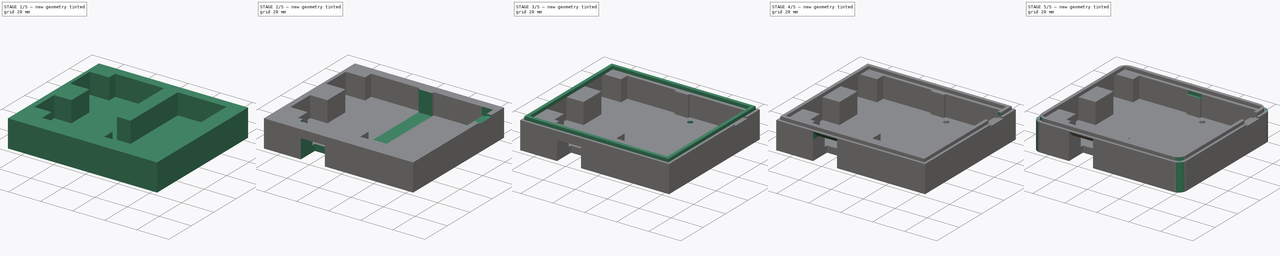
[diagram: build sequence overview — one tinted view per stage of 5, left to right]
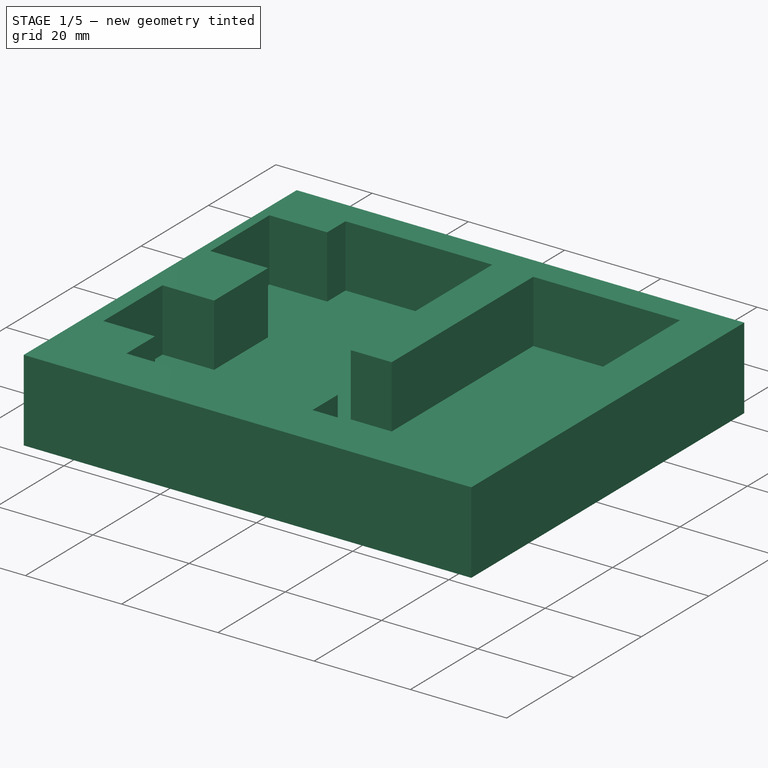
[diagram: stage 1 of 5 — iso view after this stage's code; geometry added in this stage tinted green]
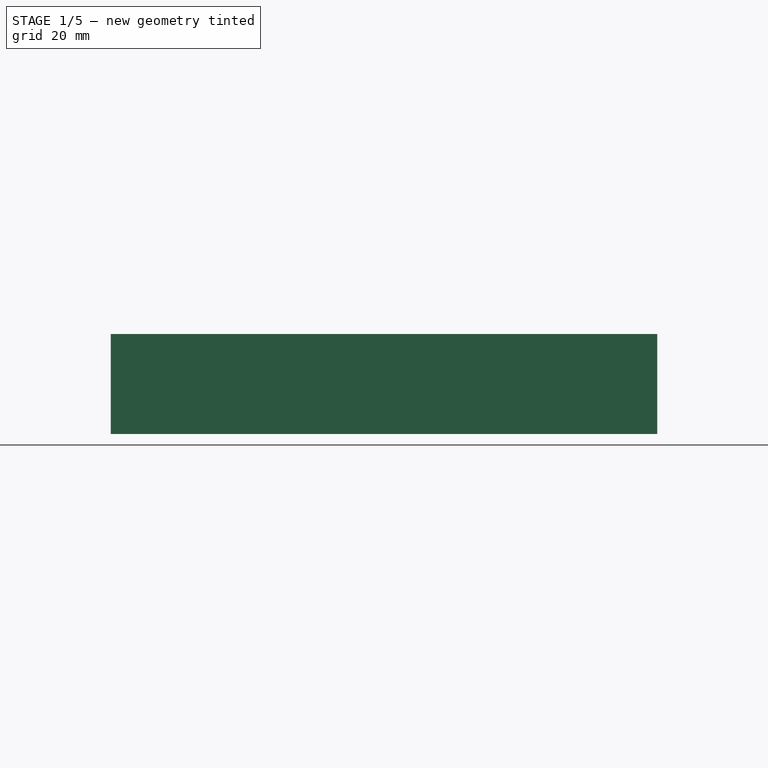
[diagram: stage 1 of 5 — front view after this stage's code; geometry added in this stage tinted green]
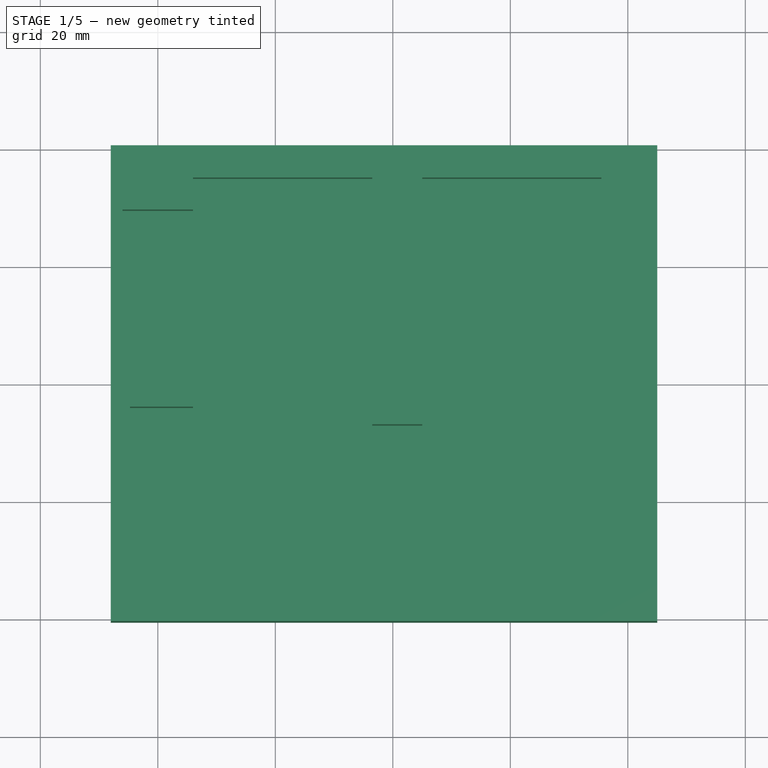
[diagram: stage 1 of 5 — top view after this stage's code; geometry added in this stage tinted green]
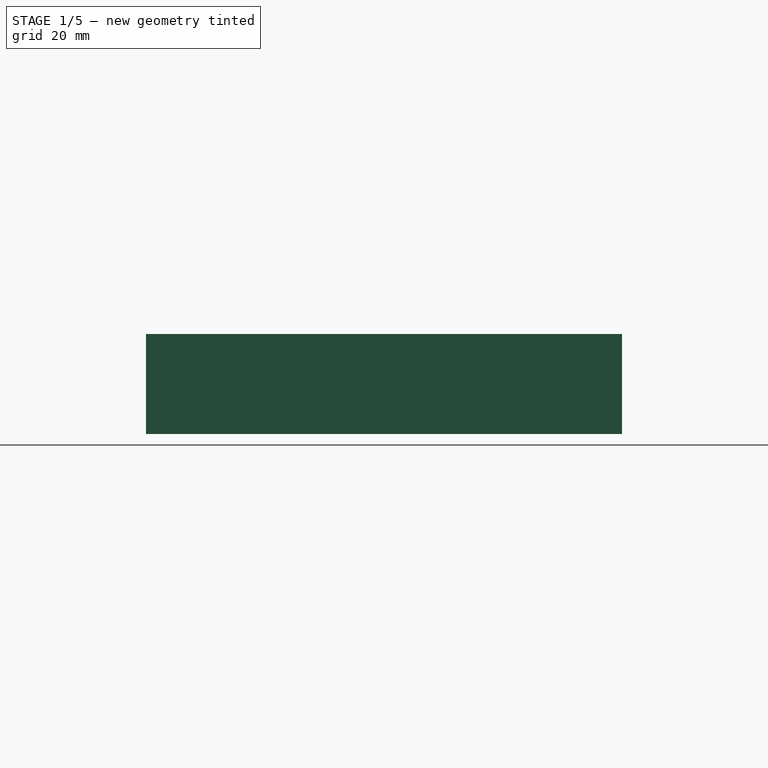
[diagram: stage 1 of 5 — right view after this stage's code; geometry added in this stage tinted green]
FCSTD DOCUMENT  (FreeCAD 0.16R)
Label: fistbump_bottom
License: All rights reserved
LicenseURL: http://en.wikipedia.org/wiki/All_rights_reserved
objects: Sketcher::SketchObject×18, PartDesign::Pocket×16, PartDesign::Chamfer×3, PartDesign::Fillet×3, PartDesign::Pad×2
note: 60 computed .brp shape members not serialized (recipe doc carries the construction recipe); baked Part::Feature solids carry a one-line shape summary decoded from their .brp

FEATURE [Sketcher::SketchObject] Sketch
  sketch-geometry (4):
    g0: LineSegment StartX=-48 StartY=40.5 StartZ=0 EndX=45 EndY=40.5 EndZ=0
    g1: LineSegment StartX=45 StartY=40.5 StartZ=0 EndX=45 EndY=-40.5 EndZ=0
    g2: LineSegment StartX=45 StartY=-40.5 StartZ=0 EndX=-48 EndY=-40.5 EndZ=0
    g3: LineSegment StartX=-48 StartY=-40.5 StartZ=0 EndX=-48 EndY=40.5 EndZ=0
  constraints (12):
    c: Coincident(g0,g1)
    c: Coincident(g1,g2)
    c: Coincident(g2,g3)
    c: Coincident(g3,g0)
    c: Horizontal(g0)
    c: Horizontal(g2)
    c: Vertical(g1)
    c: Vertical(g3)
    c: Symmetric(g0,g2,g-1)
    c: DistanceX(g0,g0) = 93
    c: DistanceY(g3,g3) = 81
    c: DistanceX(g0,g-1) = 48
FEATURE [PartDesign::Pad] Pad
  Length = 17
  Length2 = 100
  Sketch = -> Sketch
  Type = 0
FEATURE [Sketcher::SketchObject] Sketch001
  Placement = pos=(0,0,17) rot=(0,0,1;0rad)
  Support = -> Pad [Face6]
  sketch-geometry (4):
    g0: LineSegment StartX=5 StartY=35 StartZ=0 EndX=35.5 EndY=35 EndZ=0
    g1: LineSegment StartX=35.5 StartY=35 StartZ=0 EndX=35.5 EndY=-30.5 EndZ=0
    g2: LineSegment StartX=35.5 StartY=-30.5 StartZ=0 EndX=5 EndY=-30.5 EndZ=0
    g3: LineSegment StartX=5 StartY=-30.5 StartZ=0 EndX=5 EndY=35 EndZ=0
  constraints (12):
    c: Coincident(g0,g1)
    c: Coincident(g1,g2)
    c: Coincident(g2,g3)
    c: Coincident(g3,g0)
    c: Horizontal(g0)
    c: Horizontal(g2)
    c: Vertical(g1)
    c: Vertical(g3)
    c: DistanceX(g-1,g0) = 5
    c: DistanceY(g-1,g0) = 35
    c: DistanceY(g3,g3) = 65.5
    c: DistanceX(g0,g0) = 30.5
FEATURE [PartDesign::Pocket] Pocket
  Length = 13
  Sketch = -> Sketch001
  Type = 0
FEATURE [Sketcher::SketchObject] Sketch002
  Placement = pos=(0,0,17) rot=(0,0,1;0rad)
  Support = -> Pocket [Face5]
  sketch-geometry (4):
    g0: LineSegment StartX=-34 StartY=35 StartZ=0 EndX=-3.5 EndY=35 EndZ=0
    g1: LineSegment StartX=-3.5 StartY=35 StartZ=0 EndX=-3.5 EndY=-30 EndZ=0
    g2: LineSegment StartX=-3.5 StartY=-30 StartZ=0 EndX=-34 EndY=-30 EndZ=0
    g3: LineSegment StartX=-34 StartY=-30 StartZ=0 EndX=-34 EndY=35 EndZ=0
  constraints (12):
    c: Coincident(g0,g1)
    c: Coincident(g1,g2)
    c: Coincident(g2,g3)
    c: Coincident(g3,g0)
    c: Horizontal(g0)
    c: Horizontal(g2)
    c: Vertical(g1)
    c: Vertical(g3)
    c: DistanceY(g-1,g0) = 35
    c: DistanceX(g0,g-1) = 3.5
    c: DistanceY(g1,g1) = 65
    c: DistanceX(g0,g0) = 30.5
FEATURE [PartDesign::Pocket] Pocket001
  Length = 13
  Sketch = -> Sketch002
  Type = 0
FEATURE [Sketcher::SketchObject] Sketch003
  Placement = pos=(0,0,17) rot=(0,0,1;0rad)
  Support = -> Pocket001 [Face5]
  sketch-geometry (4):
    g0: LineSegment StartX=-6.8229 StartY=-7 StartZ=0 EndX=6.8229 EndY=-7 EndZ=0
    g1: LineSegment StartX=6.8229 StartY=-7 StartZ=0 EndX=6.8229 EndY=-23 EndZ=0
    g2: LineSegment StartX=6.8229 StartY=-23 StartZ=0 EndX=-6.8229 EndY=-23 EndZ=0
    g3: LineSegment StartX=-6.8229 StartY=-23 StartZ=0 EndX=-6.8229 EndY=-7 EndZ=0
  constraints (12):
    c: Coincident(g0,g1)
    c: Coincident(g1,g2)
    c: Coincident(g2,g3)
    c: Coincident(g3,g0)
    c: Horizontal(g0)
    c: Horizontal(g2)
    c: Vertical(g1)
    c: Vertical(g3)
    c: DistanceY(g0,g-1) = 7
    c: DistanceY(g3,g3) = 16
    c: Symmetric(g0,g0,g-2)
    c: DistanceX(g2,g2) = 13.6458
FEATURE [PartDesign::Pocket] Pocket002
  Length = 13
  Sketch = -> Sketch003
  Type = 0
FEATURE [Sketcher::SketchObject] Sketch004
  Placement = pos=(0,0,17) rot=(0,0,1;0rad)
  Support = -> Pocket002 [Face5]
  sketch-geometry (8):
    g0: LineSegment StartX=-46 StartY=29.55 StartZ=0 EndX=-29.7276 EndY=29.55 EndZ=0
    g1: LineSegment StartX=-29.7276 StartY=29.55 StartZ=0 EndX=-29.7276 EndY=12 EndZ=0
    g2: LineSegment StartX=-29.7276 StartY=12 StartZ=0 EndX=-46 EndY=12 EndZ=0
    g3: LineSegment StartX=-46 StartY=12 StartZ=0 EndX=-46 EndY=29.55 EndZ=0
    g4: LineSegment StartX=-44.723 StartY=-4 StartZ=0 EndX=-28.4506 EndY=-4 EndZ=0
    g5: LineSegment StartX=-28.4506 StartY=-4 StartZ=0 EndX=-28.4506 EndY=-21.55 EndZ=0
    g6: LineSegment StartX=-28.4506 StartY=-21.55 StartZ=0 EndX=-44.723 EndY=-21.55 EndZ=0
    g7: LineSegment StartX=-44.723 StartY=-21.55 StartZ=0 EndX=-44.723 EndY=-4 EndZ=0
  constraints (23):
    c: Coincident(g0,g1)
    c: Coincident(g1,g2)
    c: Coincident(g2,g3)
    c: Coincident(g3,g0)
    c: Horizontal(g0)
    c: Horizontal(g2)
    c: Vertical(g1)
    c: Vertical(g3)
    c: DistanceY(g-1,g1) = 12
    c: DistanceY(g3,g3) = 17.55
    c: DistanceX(g2,g-1) = 46
    c: Coincident(g4,g5)
    c: Coincident(g5,g6)
    c: Coincident(g6,g7)
    c: Coincident(g7,g4)
    c: Horizontal(g4)
    c: Horizontal(g6)
    c: Vertical(g5)
    c: Vertical(g7)
    c: Equal(g3,g7)
    c: DistanceX(g0,g0) = 16.2724
    c: Equal(g4,g0)
    c: DistanceY(g4,g-1) = 4
FEATURE [PartDesign::Pocket] Pocket003  label="wifi_ble ports"
  Length = 13
  Sketch = -> Sketch004
  Type = 0
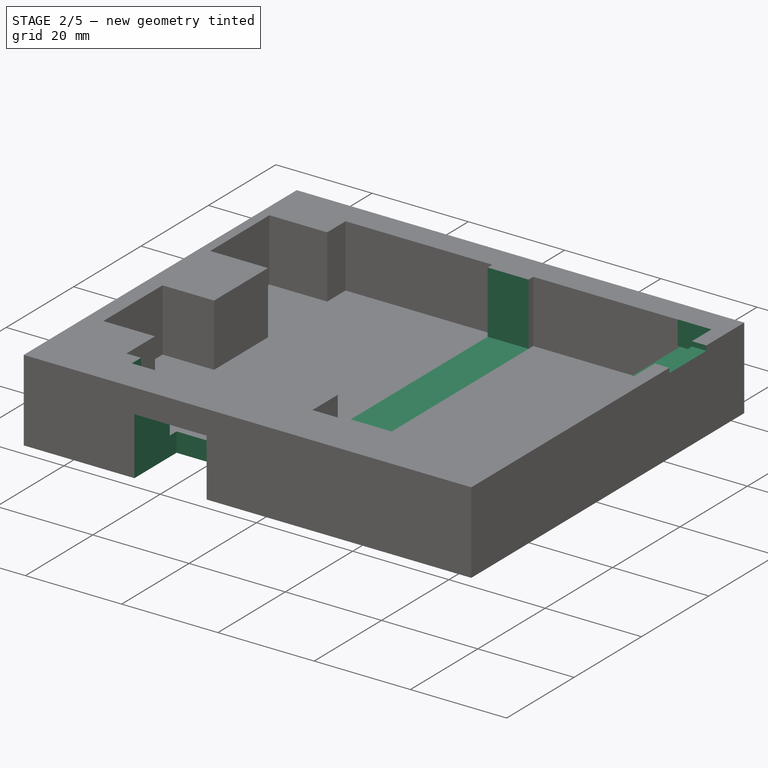
[diagram: stage 2 of 5 — iso view after this stage's code; geometry added in this stage tinted green]
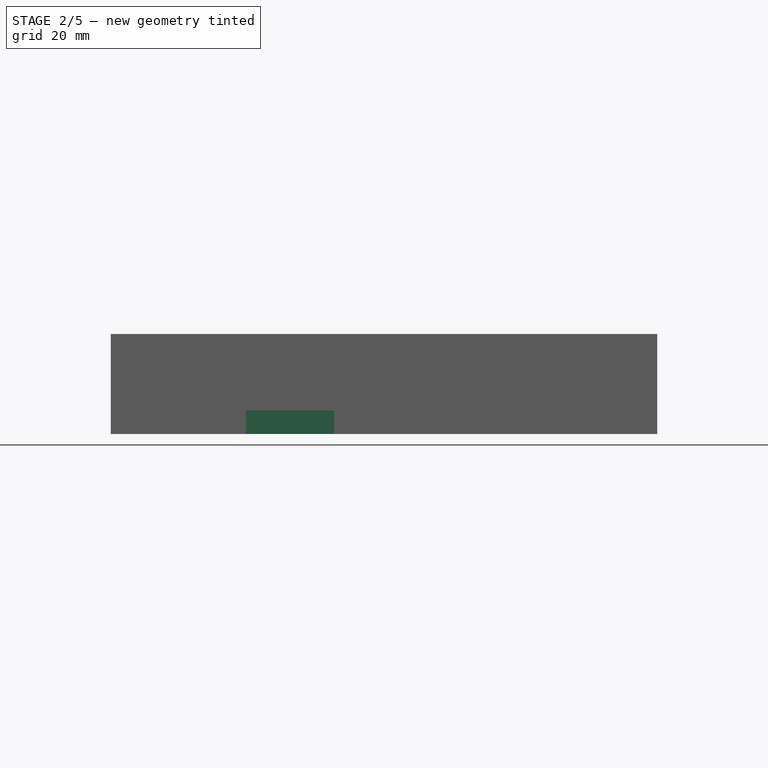
[diagram: stage 2 of 5 — front view after this stage's code; geometry added in this stage tinted green]
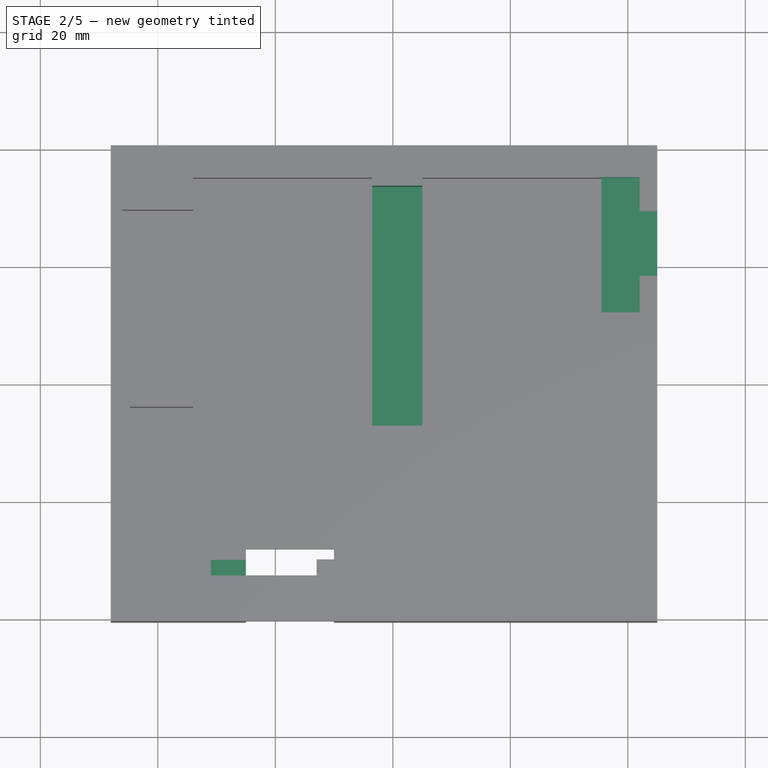
[diagram: stage 2 of 5 — top view after this stage's code; geometry added in this stage tinted green]
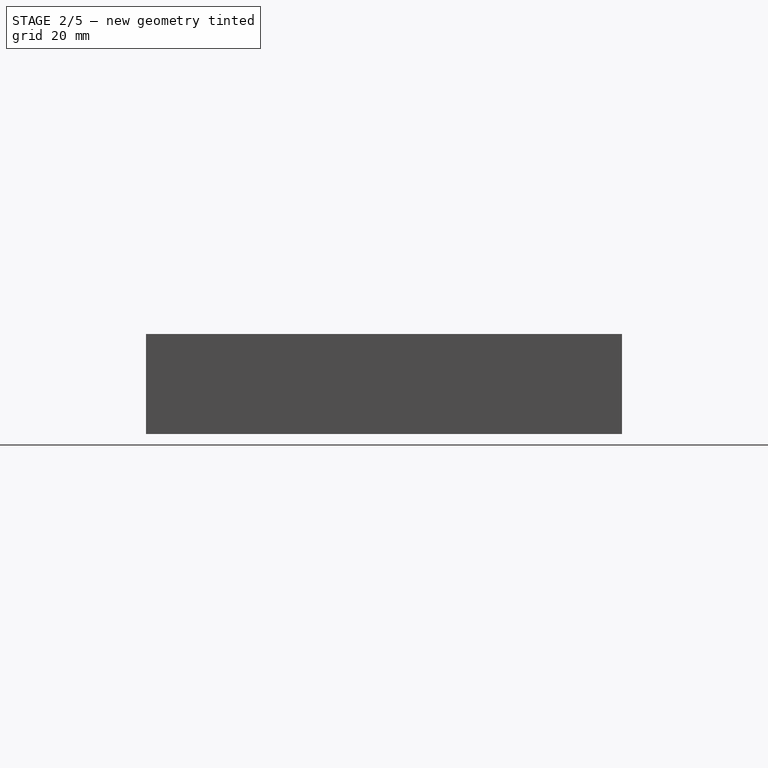
[diagram: stage 2 of 5 — right view after this stage's code; geometry added in this stage tinted green]
FEATURE [Sketcher::SketchObject] Sketch005
  Placement = pos=(0,0,17) rot=(0,0,1;0rad)
  Support = -> Pocket003 [Face5]
  sketch-geometry (4):
    g0: LineSegment StartX=-7.5093 StartY=33.6127 StartZ=0 EndX=7.5093 EndY=33.6127 EndZ=0
    g1: LineSegment StartX=7.5093 StartY=33.6127 StartZ=0 EndX=7.5093 EndY=-9.3117 EndZ=0
    g2: LineSegment StartX=7.5093 StartY=-9.3117 StartZ=0 EndX=-7.5093 EndY=-9.3117 EndZ=0
    g3: LineSegment StartX=-7.5093 StartY=-9.3117 StartZ=0 EndX=-7.5093 EndY=33.6127 EndZ=0
  constraints (12):
    c: Coincident(g0,g1)
    c: Coincident(g1,g2)
    c: Coincident(g2,g3)
    c: Coincident(g3,g0)
    c: Horizontal(g0)
    c: Horizontal(g2)
    c: Vertical(g1)
    c: Vertical(g3)
    c: Symmetric(g0,g0,g-2)
    c: DistanceY(g-1,g0) = 33.6127
    c: DistanceY(g1,g1) = 42.9244
    c: DistanceX(g2,g2) = 15.0186
FEATURE [PartDesign::Pocket] Pocket004  label="wire _space"
  Length = 13
  Sketch = -> Sketch005
  Type = 0
FEATURE [Sketcher::SketchObject] Sketch006
  Placement = pos=(0,0,0) rot=(1,0,0;3.14159rad)
  Support = -> Pocket004 [Face4]
  sketch-geometry (4):
    g0: LineSegment StartX=-25 StartY=53.9529 StartZ=0 EndX=-10 EndY=53.9529 EndZ=0
    g1: LineSegment StartX=-10 StartY=53.9529 StartZ=0 EndX=-10 EndY=28 EndZ=0
    g2: LineSegment StartX=-10 StartY=28 StartZ=0 EndX=-25 EndY=28 EndZ=0
    g3: LineSegment StartX=-25 StartY=28 StartZ=0 EndX=-25 EndY=53.9529 EndZ=0
  constraints (11):
    c: Coincident(g0,g1)
    c: Coincident(g1,g2)
    c: Coincident(g2,g3)
    c: Coincident(g3,g0)
    c: Horizontal(g0)
    c: Horizontal(g2)
    c: Vertical(g1)
    c: Vertical(g3)
    c: DistanceX(g0,g0) = 15
    c: DistanceX(g0,g-1) = 10
    c: DistanceY(g-1,g1) = 28
FEATURE [PartDesign::Pocket] Pocket005  label="thumb drive"
  Length = 12
  Sketch = -> Sketch006
  Type = 0
FEATURE [Sketcher::SketchObject] Sketch007
  Placement = pos=(0,0,17) rot=(0,0,1;0rad)
  Support = -> Pocket005 [Face5]
  sketch-geometry (6):
    g0: LineSegment [constr] StartX=-33.9684 StartY=34.9177 StartZ=0 EndX=-33.9684 EndY=-54.7084 EndZ=0
    g1: LineSegment [constr] StartX=-56.9758 StartY=-30.1557 StartZ=0 EndX=20.1164 EndY=-30.1557 EndZ=0
    g2: LineSegment StartX=-30.9684 StartY=-26.7217 StartZ=0 EndX=-12.9684 EndY=-26.7217 EndZ=0
    g3: LineSegment StartX=-12.9684 StartY=-26.7217 StartZ=0 EndX=-12.9684 EndY=-32.7312 EndZ=0
    g4: LineSegment StartX=-12.9684 StartY=-32.7312 StartZ=0 EndX=-30.9684 EndY=-32.7312 EndZ=0
    g5: LineSegment StartX=-30.9684 StartY=-32.7312 StartZ=0 EndX=-30.9684 EndY=-26.7217 EndZ=0
  constraints (18):
    c: Vertical(g0)
    c: Horizontal(g1)
    c: DistanceX(g1,g-1) = 56.9758
    c: DistanceY(g0,g-1) = 54.7084
    c: DistanceX(g1,g1) = 77.0922
    c: DistanceY(g0,g0) = 89.6261
    c: DistanceX(g0,g-1) = 33.9684
    c: DistanceY(g1,g-1) = 30.1557
    c: Coincident(g2,g3)
    c: Coincident(g3,g4)
    c: Coincident(g4,g5)
    c: Coincident(g5,g2)
    c: Horizontal(g2)
    c: Horizontal(g4)
    c: Vertical(g3)
    c: Vertical(g5)
    c: DistanceX(g4,g4) = 18
    c: DistanceX(g0,g4) = 3
FEATURE [PartDesign::Pocket] Pocket006  label="sdcard"
  Length = 5
  Sketch = -> Sketch007
  Type = 0
FEATURE [Sketcher::SketchObject] Sketch009
  Placement = pos=(0,0,17) rot=(0,0,1;0rad)
  Support = -> Pocket006 [Face5]
  sketch-geometry (4):
    g0: LineSegment StartX=35 StartY=35.0529 StartZ=0 EndX=42 EndY=35.0529 EndZ=0
    g1: LineSegment StartX=42 StartY=35.0529 StartZ=0 EndX=42 EndY=12.0529 EndZ=0
    g2: LineSegment StartX=42 StartY=12.0529 StartZ=0 EndX=35 EndY=12.0529 EndZ=0
    g3: LineSegment StartX=35 StartY=12.0529 StartZ=0 EndX=35 EndY=35.0529 EndZ=0
  constraints (12):
    c: Coincident(g0,g1)
    c: Coincident(g1,g2)
    c: Coincident(g2,g3)
    c: Coincident(g3,g0)
    c: Horizontal(g0)
    c: Horizontal(g2)
    c: Vertical(g3)
    c: DistanceY(g1,g1) = 23
    c: DistanceX(g-1,g0) = 35
    c: DistanceY(g-1,g2) = 12.0529
    c: DistanceX(g0,g0) = 7
    c: Equal(g0,g2)
FEATURE [PartDesign::Pocket] Pocket008
  Length = 5
  Sketch = -> Sketch009
  Type = 0
FEATURE [Sketcher::SketchObject] Sketch010
  Placement = pos=(0,0,17) rot=(0,0,1;0rad)
  Support = -> Pocket008 [Face5]
  sketch-geometry (5):
    g0: LineSegment StartX=35.5949 StartY=29.2601 StartZ=0 EndX=46.6552 EndY=29.2601 EndZ=0
    g1: LineSegment StartX=46.6552 StartY=29.2601 StartZ=0 EndX=46.6552 EndY=18.2601 EndZ=0
    g2: LineSegment StartX=46.6552 StartY=18.2601 StartZ=0 EndX=35.5949 EndY=18.2601 EndZ=0
    g3: LineSegment StartX=35.5949 StartY=18.2601 StartZ=0 EndX=35.5949 EndY=29.2601 EndZ=0
    g4: LineSegment [constr] StartX=4.95382 StartY=35.0101 StartZ=0 EndX=50.8336 EndY=35.0101 EndZ=0
  constraints (18):
    c: Coincident(g0,g1)
    c: Coincident(g1,g2)
    c: Coincident(g2,g3)
    c: Coincident(g3,g0)
    c: Horizontal(g0)
    c: Horizontal(g2)
    c: Vertical(g1)
    c: Vertical(g3)
    c: Horizontal(g4)
    c: DistanceX(g4,g4) = 45.8798
    c: DistanceX(g-1,g4) = 4.95382
    c: DistanceY(g1,g1) = 11
    c: DistanceY(g0,g4) = 5.75
    c: DistanceX(g4,g0) = 30.6411
    c: DistanceX(g2,g2) = 11.0603
    c: Equal(g2,g0)
    c: Equal(g1,g3)
    c: DistanceY(g-1,g4) = 35.0101
FEATURE [PartDesign::Pocket] Pocket009  label="charge port"
  Length = 1
  Sketch = -> Sketch010
  Type = 0
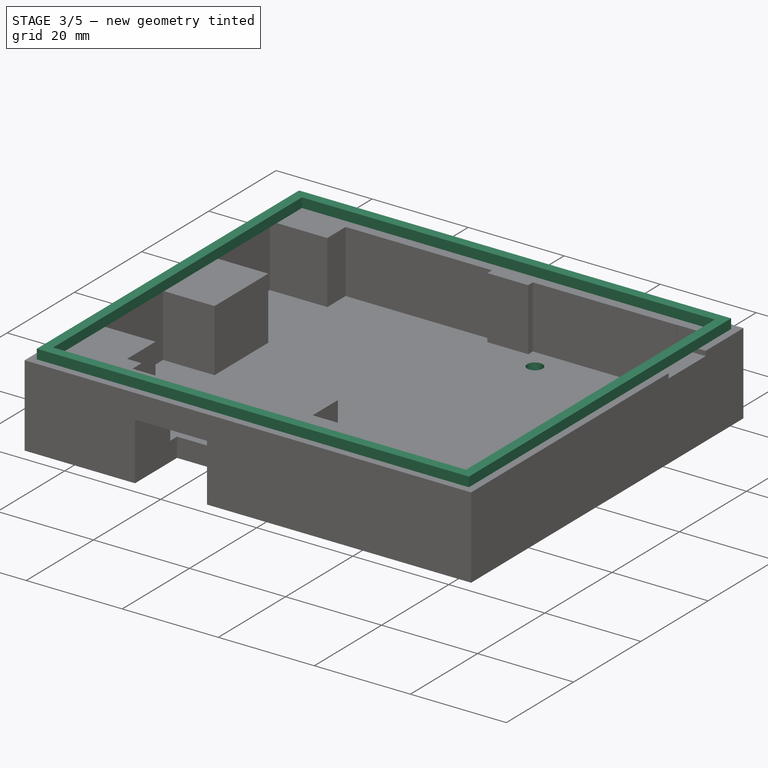
[diagram: stage 3 of 5 — iso view after this stage's code; geometry added in this stage tinted green]
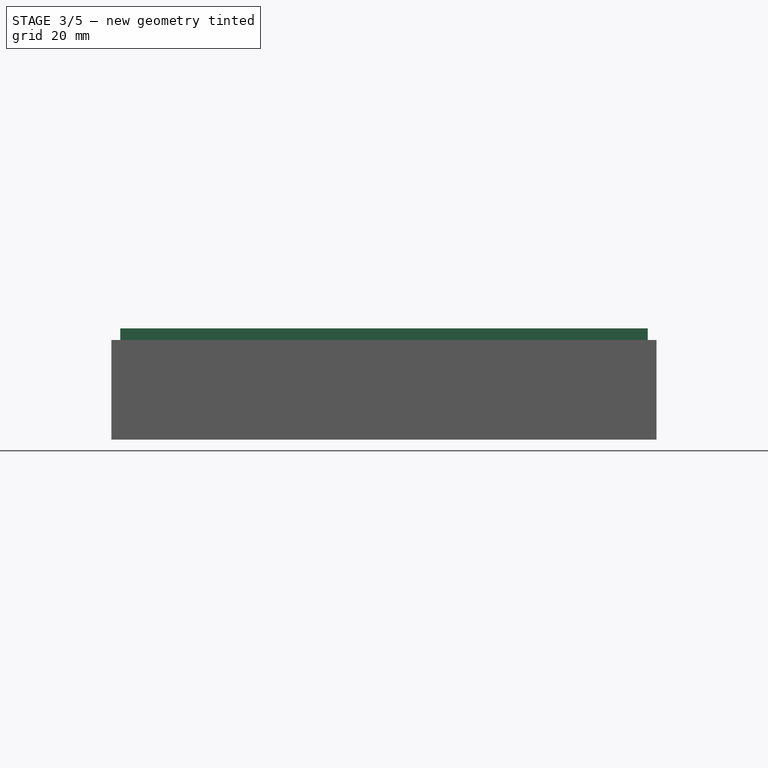
[diagram: stage 3 of 5 — front view after this stage's code; geometry added in this stage tinted green]
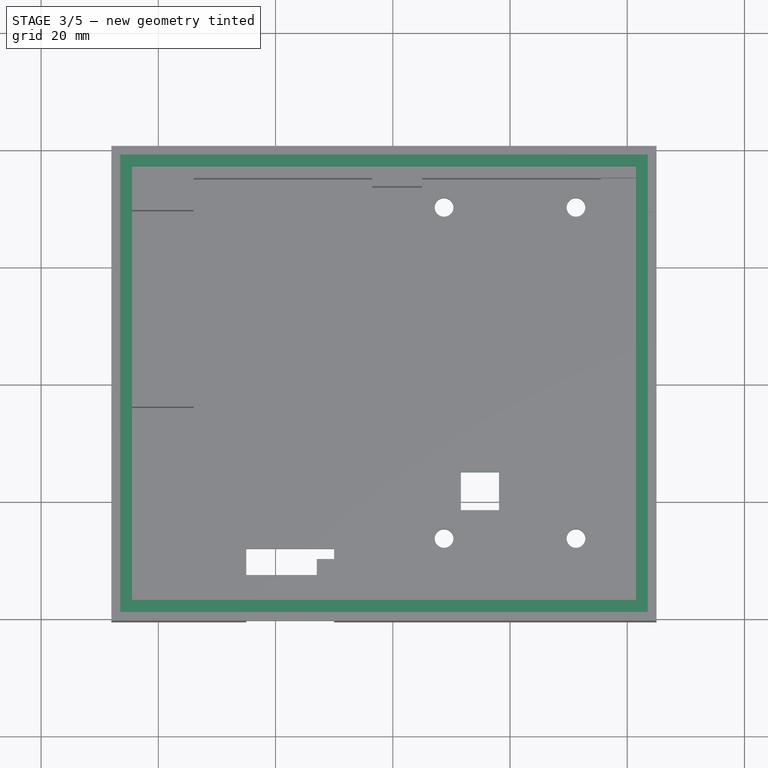
[diagram: stage 3 of 5 — top view after this stage's code; geometry added in this stage tinted green]
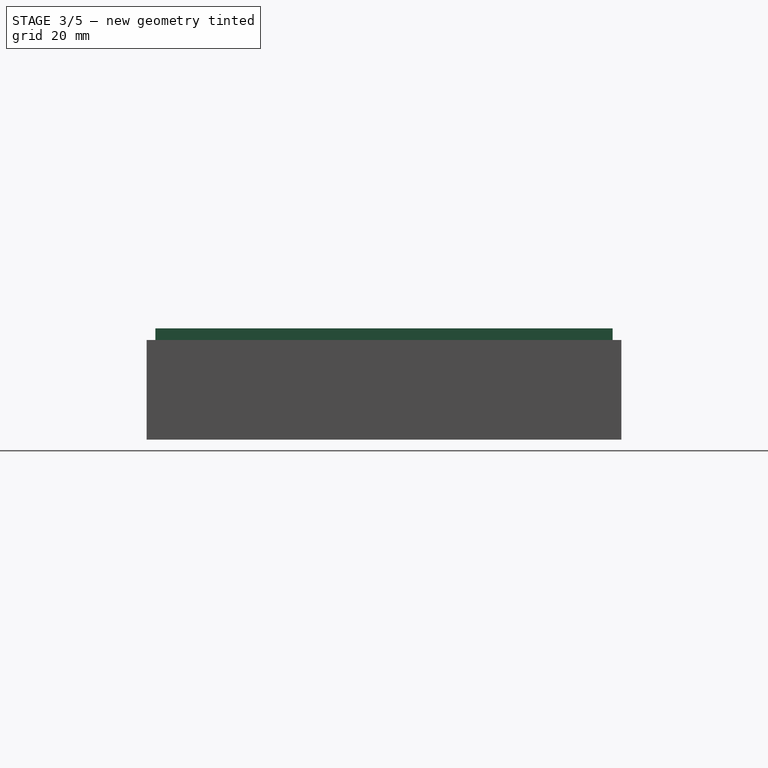
[diagram: stage 3 of 5 — right view after this stage's code; geometry added in this stage tinted green]
FEATURE [Sketcher::SketchObject] Sketch011
  Placement = pos=(0,0,0) rot=(1,0,0;3.14159rad)
  Support = -> Pocket009 [Face4]
  sketch-geometry (6):
    g0: LineSegment StartX=11.6166 StartY=21.4196 StartZ=0 EndX=18.1166 EndY=21.4196 EndZ=0
    g1: LineSegment StartX=18.1166 StartY=21.4196 StartZ=0 EndX=18.1166 EndY=14.9196 EndZ=0
    g2: LineSegment StartX=18.1166 StartY=14.9196 StartZ=0 EndX=11.6166 EndY=14.9196 EndZ=0
    g3: LineSegment StartX=11.6166 StartY=14.9196 StartZ=0 EndX=11.6166 EndY=21.4196 EndZ=0
    g4: LineSegment [constr] StartX=5.1166 StartY=-35.4714 StartZ=0 EndX=5.1166 EndY=38.7555 EndZ=0
    g5: LineSegment [constr] StartX=-33.9112 StartY=29.8196 StartZ=0 EndX=-3.49079 EndY=29.8196 EndZ=0
  constraints (20):
    c: Coincident(g0,g1)
    c: Coincident(g1,g2)
    c: Coincident(g2,g3)
    c: Coincident(g3,g0)
    c: Horizontal(g0)
    c: Horizontal(g2)
    c: Vertical(g1)
    c: Vertical(g3)
    c: Equal(g0,g1)
    c: DistanceX(g0,g0) = 6.5
    c: Vertical(g4)
    c: DistanceY(g4,g4) = 74.2269
    c: DistanceX(g-1,g4) = 5.1166
    c: DistanceY(g4,g-1) = 35.4714
    c: DistanceX(g4,g0) = 6.5
    c: Horizontal(g5)
    c: DistanceX(g5,g5) = 30.4204
    c: DistanceY(g-1,g5) = 29.8196
    c: DistanceX(g5,g-1) = 3.49079
    c: DistanceY(g0,g5) = 8.4
FEATURE [PartDesign::Pocket] Pocket010  label="power button"
  Length = 5
  Sketch = -> Sketch011
  Type = 1
FEATURE [Sketcher::SketchObject] Sketch014
  Placement = pos=(5,0,0) rot=(0.57735,0.57735,0.57735;2.0944rad)
  Support = -> Pocket010 [Face21]
  sketch-geometry (4):
    g0: LineSegment StartX=-4.03663 StartY=19 StartZ=0 EndX=12.0634 EndY=19 EndZ=0
    g1: LineSegment StartX=12.0634 StartY=19 StartZ=0 EndX=12.0634 EndY=7 EndZ=0
    g2: LineSegment StartX=12.0634 StartY=7 StartZ=0 EndX=-4.03663 EndY=7 EndZ=0
    g3: LineSegment StartX=-4.03663 StartY=7 StartZ=0 EndX=-4.03663 EndY=19 EndZ=0
  constraints (12):
    c: Coincident(g0,g1)
    c: Coincident(g1,g2)
    c: Coincident(g2,g3)
    c: Coincident(g3,g0)
    c: Horizontal(g0)
    c: Horizontal(g2)
    c: Vertical(g1)
    c: Vertical(g3)
    c: DistanceX(g0,g0) = 16.1
    c: DistanceY(g-1,g0) = 19
    c: DistanceY(g3,g3) = 12
    c: DistanceX(g2,g-1) = 4.03663
FEATURE [PartDesign::Pocket] Pocket011
  Length = 5
  Sketch = -> Sketch014
  Type = 0
FEATURE [Sketcher::SketchObject] Sketch016
  Placement = pos=(0,0,12) rot=(0,0,1;0rad)
  Support = -> Pocket011 [Face47]
  sketch-geometry (12):
    g0: LineSegment [constr] StartX=4.5 StartY=34.5 StartZ=0 EndX=35.5 EndY=34.5 EndZ=0
    g1: LineSegment [constr] StartX=35.5 StartY=34.5 StartZ=0 EndX=35.5 EndY=-30.5 EndZ=0
    g2: LineSegment [constr] StartX=35.5 StartY=-30.5 StartZ=0 EndX=4.5 EndY=-30.5 EndZ=0
    g3: LineSegment [constr] StartX=4.5 StartY=-30.5 StartZ=0 EndX=4.5 EndY=34.5 EndZ=0
    g4: LineSegment [constr] StartX=4.5 StartY=34.5 StartZ=0 EndX=8.75 EndY=30.25 EndZ=0
    g5: LineSegment [constr] StartX=35.5 StartY=34.5 StartZ=0 EndX=31.25 EndY=30.25 EndZ=0
    g6: LineSegment [constr] StartX=4.5 StartY=-30.5 StartZ=0 EndX=8.75 EndY=-26.25 EndZ=0
    g7: LineSegment [constr] StartX=35.5 StartY=-30.5 StartZ=0 EndX=31.25 EndY=-26.25 EndZ=0
    g8: Circle CenterX=8.75 CenterY=30.25 CenterZ=0 NormalX=0 NormalY=0 NormalZ=1 Radius=1.6
    g9: Circle CenterX=31.25 CenterY=30.25 CenterZ=0 NormalX=0 NormalY=0 NormalZ=1 Radius=1.6
    g10: Circle CenterX=8.75 CenterY=-26.25 CenterZ=0 NormalX=0 NormalY=0 NormalZ=1 Radius=1.6
    g11: Circle CenterX=31.25 CenterY=-26.25 CenterZ=0 NormalX=0 NormalY=0 NormalZ=1 Radius=1.6
  constraints (32):
    c: Coincident(g0,g1)
    c: Coincident(g1,g2)
    c: Coincident(g2,g3)
    c: Coincident(g3,g0)
    c: Horizontal(g0)
    c: Horizontal(g2)
    c: Vertical(g1)
    c: Vertical(g3)
    c: DistanceY(g3,g3) = 65
    c: DistanceX(g0,g0) = 31
    c: DistanceY(g-1,g0) = 34.5
    c: Coincident(g4,g0)
    c: Coincident(g5,g0)
    c: Coincident(g6,g2)
    c: Coincident(g7,g1)
    c: Equal(g6,g7)
    c: Equal(g7,g4)
    c: Equal(g4,g5)
    c: DistanceX(g4,g4) = 4.25
    c: Angle(g7,g2) = 0.785398
    c: Angle(g2,g6) = 0.785398
    c: Angle(g4,g0) = 0.785398
    c: Angle(g0,g5) = 0.785398
    c: Equal(g10,g8)
    c: Equal(g8,g9)
    c: Equal(g9,g11)
    c: Radius(g8) = 1.6
    c: Coincident(g8,g4)
    c: Coincident(g9,g5)
    c: Coincident(g10,g6)
    c: Coincident(g11,g7)
    c: DistanceX(g-1,g2) = 4.5
FEATURE [PartDesign::Pocket] Pocket012
  Length = 5
  Sketch = -> Sketch016
  Type = 1
FEATURE [Sketcher::SketchObject] Sketch017
  Placement = pos=(0,0,17) rot=(0,0,1;0rad)
  Support = -> Pocket012 [Face5]
  sketch-geometry (12):
    g0: LineSegment [constr] StartX=-48 StartY=40.5 StartZ=0 EndX=45 EndY=40.5 EndZ=0
    g1: LineSegment [constr] StartX=45 StartY=40.5 StartZ=0 EndX=45 EndY=-40.5 EndZ=0
    g2: LineSegment [constr] StartX=45 StartY=-40.5 StartZ=0 EndX=-48 EndY=-40.5 EndZ=0
    g3: LineSegment [constr] StartX=-48 StartY=-40.5 StartZ=0 EndX=-48 EndY=40.5 EndZ=0
    g4: LineSegment StartX=-46.5 StartY=39 StartZ=0 EndX=43.5 EndY=39 EndZ=0
    g5: LineSegment StartX=43.5 StartY=39 StartZ=0 EndX=43.5 EndY=-39 EndZ=0
    g6: LineSegment StartX=43.5 StartY=-39 StartZ=0 EndX=-46.5 EndY=-39 EndZ=0
    g7: LineSegment StartX=-46.5 StartY=-39 StartZ=0 EndX=-46.5 EndY=39 EndZ=0
    g8: LineSegment StartX=-44.5 StartY=37 StartZ=0 EndX=41.5 EndY=37 EndZ=0
    g9: LineSegment StartX=41.5 StartY=37 StartZ=0 EndX=41.5 EndY=-37 EndZ=0
    g10: LineSegment StartX=41.5 StartY=-37 StartZ=0 EndX=-44.5 EndY=-37 EndZ=0
    g11: LineSegment StartX=-44.5 StartY=-37 StartZ=0 EndX=-44.5 EndY=37 EndZ=0
  constraints (36):
    c: Coincident(g0,g1)
    c: Coincident(g1,g2)
    c: Coincident(g2,g3)
    c: Coincident(g3,g0)
    c: Horizontal(g0)
    c: Horizontal(g2)
    c: Vertical(g1)
    c: Vertical(g3)
    c: DistanceX(g0,g0) = 93
    c: DistanceY(g3,g3) = 81
    c: Symmetric(g0,g2,g-1)
    c: DistanceX(g0,g-1) = 48
    c: Coincident(g4,g5)
    c: Coincident(g5,g6)
    c: Coincident(g6,g7)
    c: Coincident(g7,g4)
    c: Horizontal(g4)
    c: Horizontal(g6)
    c: Vertical(g5)
    c: Vertical(g7)
    c: DistanceX(g4,g4) = 90
    c: DistanceY(g7,g7) = 78
    c: DistanceX(g0,g4) = 1.5
    c: DistanceY(g4,g0) = 1.5
    c: Coincident(g8,g9)
    c: Coincident(g9,g10)
    c: Coincident(g10,g11)
    c: Coincident(g11,g8)
    c: Horizontal(g8)
    c: Horizontal(g10)
    c: Vertical(g9)
    c: Vertical(g11)
    c: DistanceX(g8,g8) = 86
    c: DistanceY(g9,g9) = 74
    c: DistanceX(g4,g8) = 2
    c: DistanceY(g8,g4) = 2
FEATURE [PartDesign::Pad] Pad001
  Length = 2
  Length2 = 100
  Sketch = -> Sketch017
  Type = 0
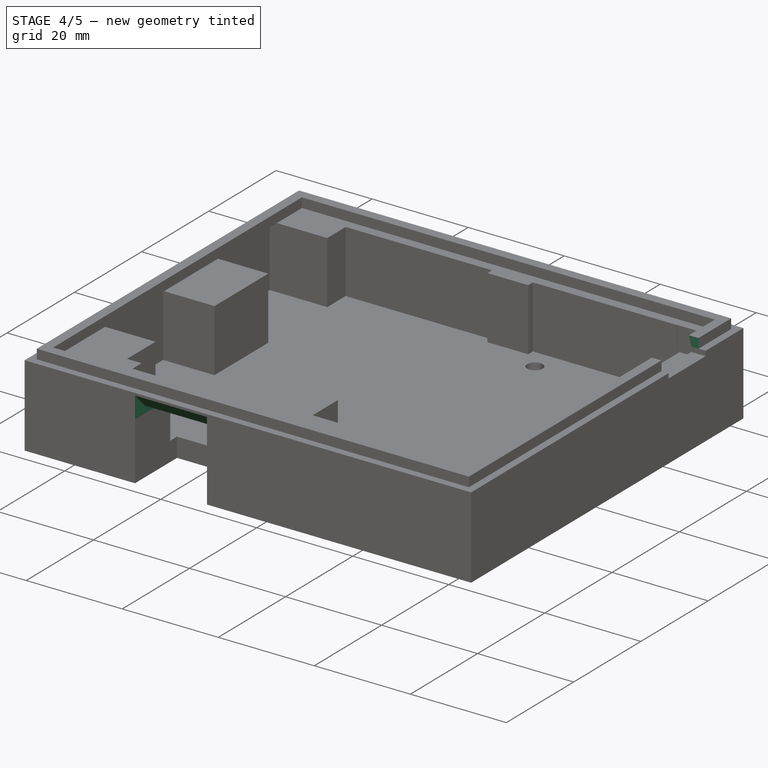
[diagram: stage 4 of 5 — iso view after this stage's code; geometry added in this stage tinted green]
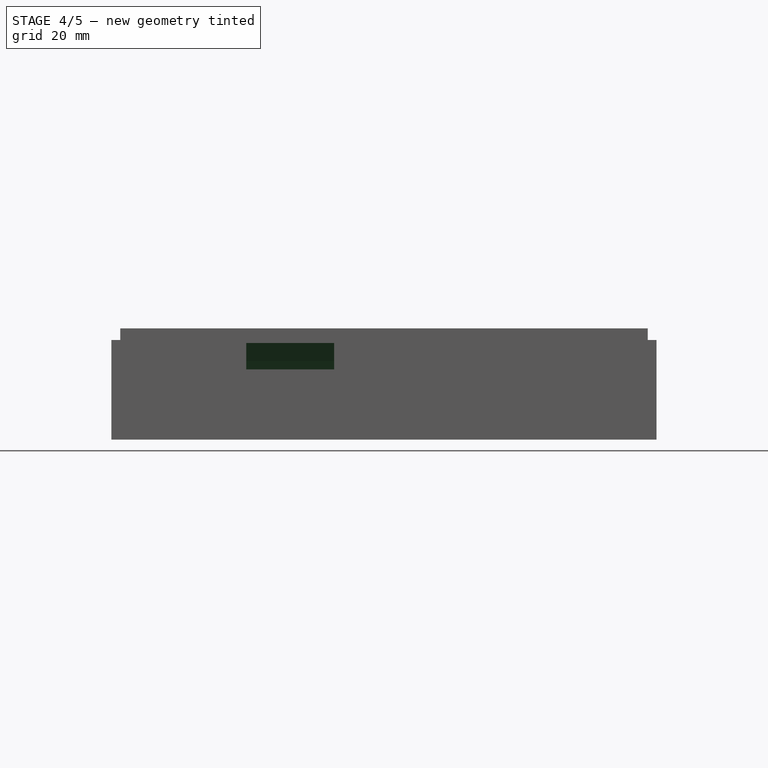
[diagram: stage 4 of 5 — front view after this stage's code; geometry added in this stage tinted green]
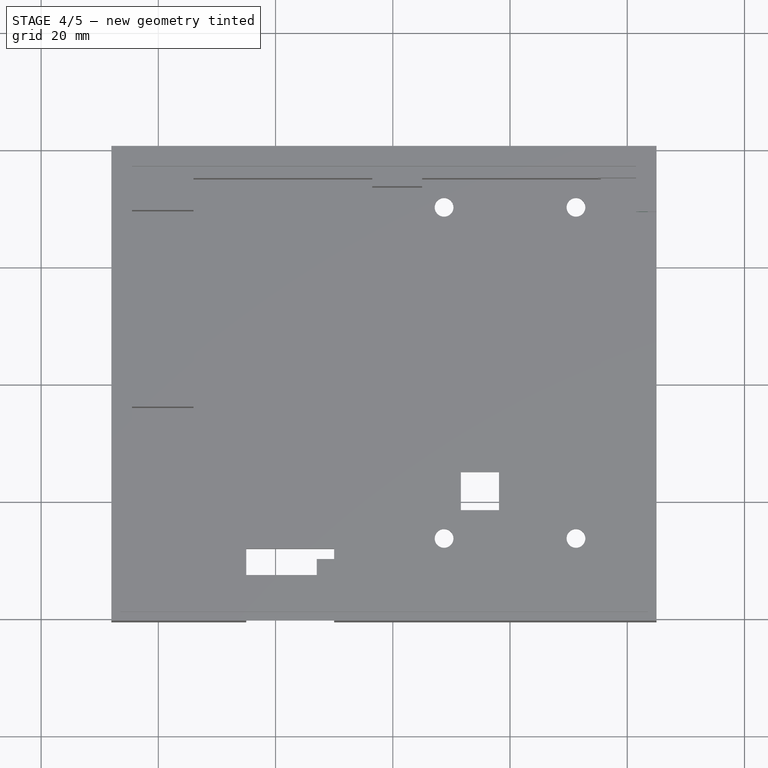
[diagram: stage 4 of 5 — top view after this stage's code; geometry added in this stage tinted green]
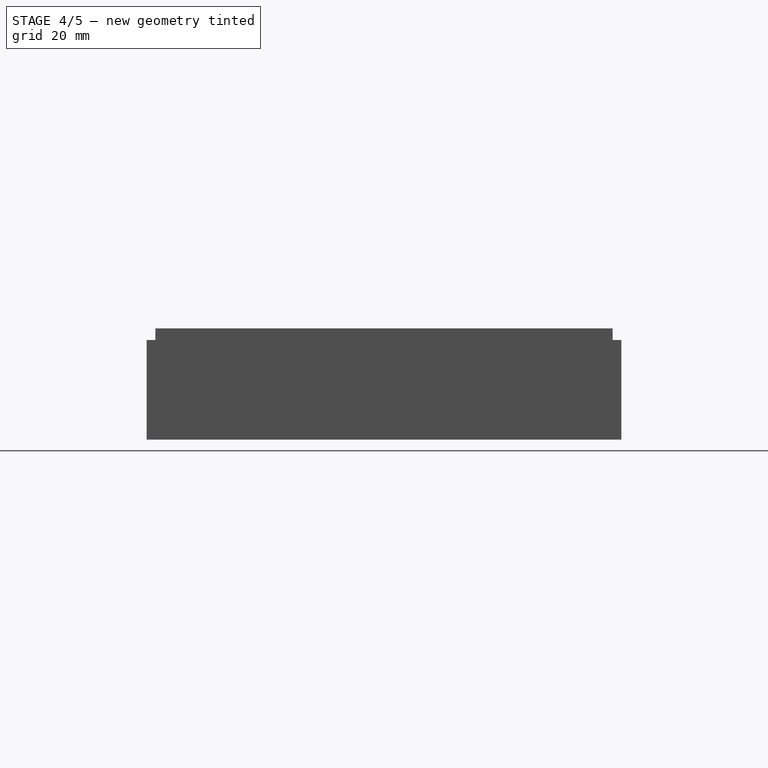
[diagram: stage 4 of 5 — right view after this stage's code; geometry added in this stage tinted green]
FEATURE [Sketcher::SketchObject] Sketch021
  Placement = pos=(0,0,19) rot=(0,0,1;0rad)
  Support = -> Pad001 [Face34]
  sketch-geometry (4):
    g0: LineSegment StartX=45.4708 StartY=29.2642 StartZ=0 EndX=38.2243 EndY=29.2642 EndZ=0
    g1: LineSegment StartX=38.2243 StartY=29.2642 StartZ=0 EndX=38.2243 EndY=18.2642 EndZ=0
    g2: LineSegment StartX=38.2243 StartY=18.2642 StartZ=0 EndX=45.4708 EndY=18.2642 EndZ=0
    g3: LineSegment StartX=45.4708 StartY=18.2642 StartZ=0 EndX=45.4708 EndY=29.2642 EndZ=0
  constraints (12):
    c: Coincident(g0,g1)
    c: Coincident(g1,g2)
    c: Coincident(g2,g3)
    c: Coincident(g3,g0)
    c: Horizontal(g0)
    c: Horizontal(g2)
    c: Vertical(g1)
    c: Vertical(g3)
    c: DistanceY(g1,g1) = 11
    c: DistanceX(g0,g0) = 7.24647
    c: DistanceX(g-1,g0) = 38.2243
    c: DistanceY(g-1,g1) = 18.2642
FEATURE [PartDesign::Pocket] Pocket013
  Length = 3
  Sketch = -> Sketch021
  Type = 0
FEATURE [Sketcher::SketchObject] Sketch020
  Placement = pos=(0,0,0) rot=(1,0,0;3.14159rad)
  Support = -> Pocket013 [Face4]
  sketch-geometry (4):
    g0: Circle CenterX=8.75 CenterY=26.25 CenterZ=0 NormalX=0 NormalY=0 NormalZ=1 Radius=2.8
    g1: Circle CenterX=31.23 CenterY=26.25 CenterZ=0 NormalX=0 NormalY=0 NormalZ=1 Radius=2.8
    g2: Circle CenterX=8.75 CenterY=-30.25 CenterZ=0 NormalX=0 NormalY=0 NormalZ=1 Radius=2.8
    g3: Circle CenterX=31.23 CenterY=-30.25 CenterZ=0 NormalX=0 NormalY=0 NormalZ=1 Radius=2.8
  constraints (12):
    c: Radius(g0) = 2.8
    c: Equal(g3,g2)
    c: Equal(g2,g1)
    c: Equal(g1,g0)
    c: DistanceY(g-1,g0) = 26.25
    c: DistanceX(g-1,g0) = 8.75
    c: DistanceY(g-1,g1) = 26.25
    c: DistanceX(g0,g1) = 22.48
    c: DistanceY(g2,g-1) = 30.25
    c: DistanceY(g3,g-1) = 30.25
    c: DistanceX(g2,g3) = 22.48
    c: DistanceX(g-1,g2) = 8.75
FEATURE [PartDesign::Pocket] Pocket014
  Length = 2
  Sketch = -> Sketch020
  Type = 0
FEATURE [PartDesign::Chamfer] Chamfer
  Base = -> Pocket014 [Edge26,Edge27,Edge25,Edge24]
  Size = 1.5
FEATURE [PartDesign::Chamfer] Chamfer001
  Base = -> Chamfer [Edge29]
  Size = 4.5
FEATURE [PartDesign::Chamfer] Chamfer002
  Base = -> Chamfer001 [Edge17]
  Size = 2
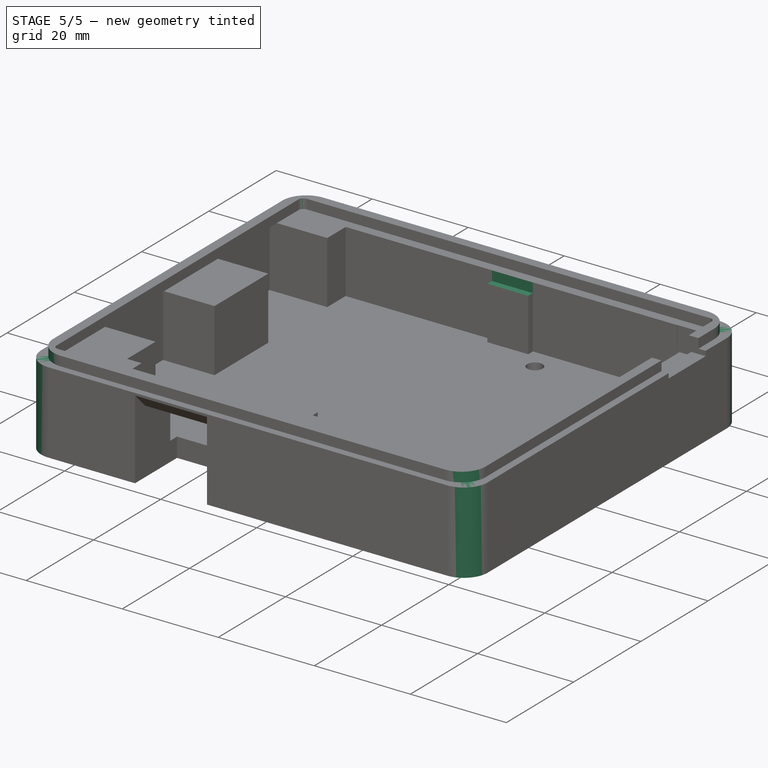
[diagram: stage 5 of 5 — iso view after this stage's code; geometry added in this stage tinted green]
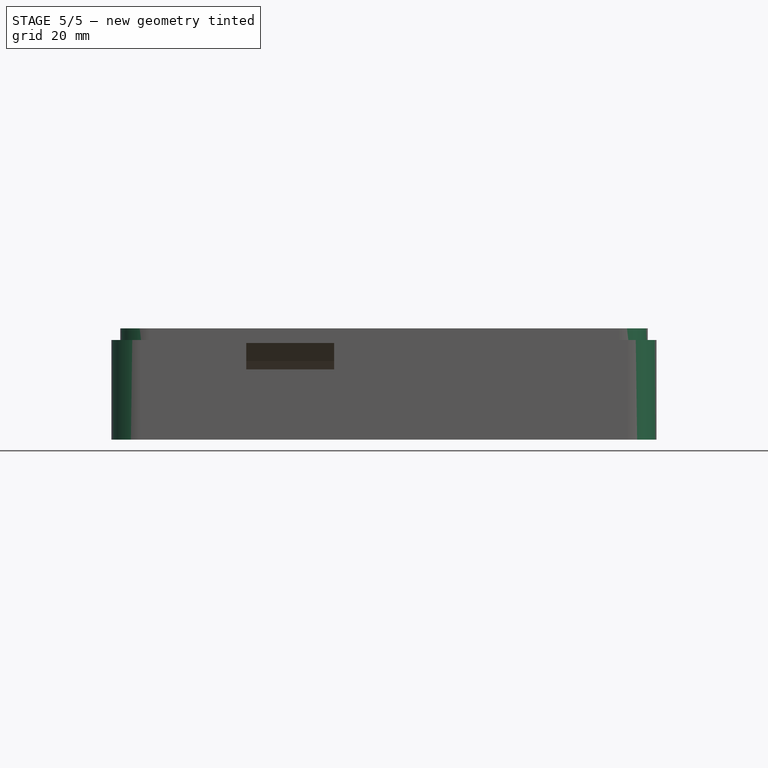
[diagram: stage 5 of 5 — front view after this stage's code; geometry added in this stage tinted green]
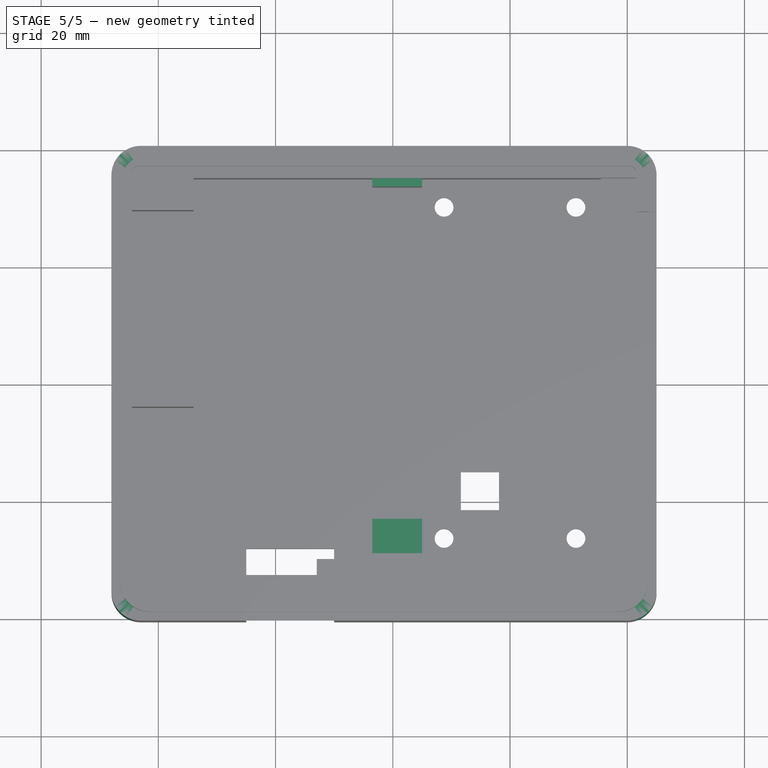
[diagram: stage 5 of 5 — top view after this stage's code; geometry added in this stage tinted green]
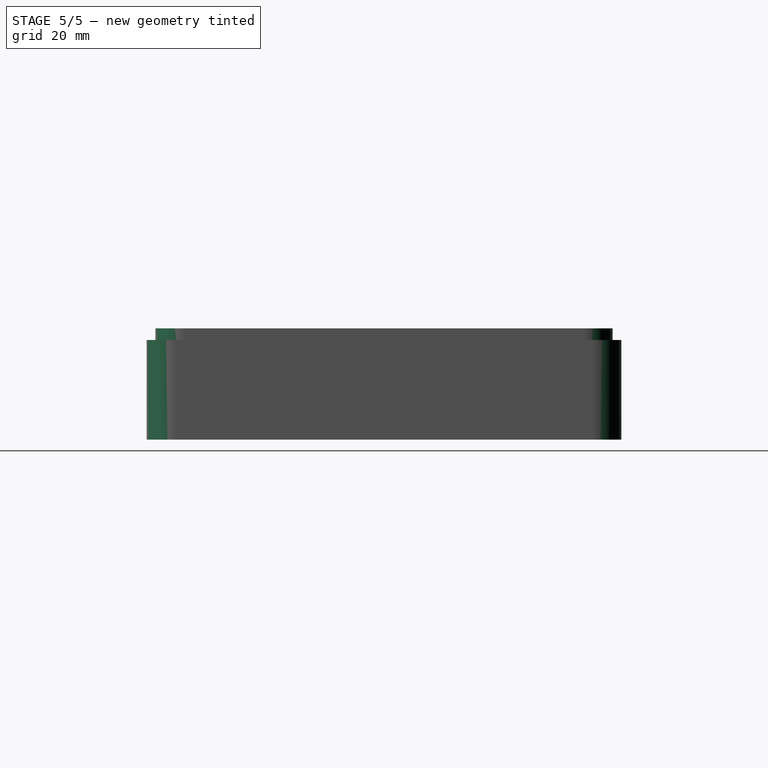
[diagram: stage 5 of 5 — right view after this stage's code; geometry added in this stage tinted green]
FEATURE [PartDesign::Fillet] Fillet
  Base = -> Chamfer002 [Edge261,Edge164,Edge160,Edge157]
  Radius = 1
FEATURE [PartDesign::Fillet] Fillet001
  Base = -> Fillet [Edge184,Edge186,Edge188,Edge182]
  Radius = 5
FEATURE [PartDesign::Fillet] Fillet002
  Base = -> Fillet001 [Edge124,Edge137,Edge138,Edge128]
  Radius = 5
FEATURE [Sketcher::SketchObject] Sketch022
  Placement = pos=(0,0,17) rot=(0,0,1;0rad)
  Support = -> Fillet002 [Face69]
  sketch-geometry (4):
    g0: LineSegment StartX=-5.43984 StartY=-21.3178 StartZ=0 EndX=5.93306 EndY=-21.3178 EndZ=0
    g1: LineSegment StartX=5.93306 StartY=-21.3178 StartZ=0 EndX=5.93306 EndY=-28.9934 EndZ=0
    g2: LineSegment StartX=5.93306 StartY=-28.9934 StartZ=0 EndX=-5.43984 EndY=-28.9934 EndZ=0
    g3: LineSegment StartX=-5.43984 StartY=-28.9934 StartZ=0 EndX=-5.43984 EndY=-21.3178 EndZ=0
  constraints (12):
    c: Coincident(g0,g1)
    c: Coincident(g1,g2)
    c: Coincident(g2,g3)
    c: Coincident(g3,g0)
    c: Horizontal(g0)
    c: Horizontal(g2)
    c: Vertical(g1)
    c: Vertical(g3)
    c: DistanceY(g0,g-1) = 21.3178
    c: DistanceX(g0,g-1) = 5.43984
    c: DistanceX(g0,g0) = 11.3729
    c: DistanceY(g3,g3) = 7.67559
FEATURE [PartDesign::Pocket] Pocket015
  Length = 7
  Sketch = -> Sketch022
  Type = 0
FEATURE [Sketcher::SketchObject] Sketch023
  Placement = pos=(0,0,17) rot=(0,0,1;0rad)
  Support = -> Pocket015 [Face60]
  sketch-geometry (4):
    g0: LineSegment StartX=-3.75921 StartY=34.9682 StartZ=0 EndX=5.34392 EndY=34.9682 EndZ=0
    g1: LineSegment StartX=5.34392 StartY=34.9682 StartZ=0 EndX=5.34392 EndY=33.4863 EndZ=0
    g2: LineSegment StartX=5.34392 StartY=33.4863 StartZ=0 EndX=-3.75921 EndY=33.4863 EndZ=0
    g3: LineSegment StartX=-3.75921 StartY=33.4863 StartZ=0 EndX=-3.75921 EndY=34.9682 EndZ=0
  constraints (12):
    c: Coincident(g0,g1)
    c: Coincident(g1,g2)
    c: Coincident(g2,g3)
    c: Coincident(g3,g0)
    c: Horizontal(g0)
    c: Horizontal(g2)
    c: Vertical(g1)
    c: Vertical(g3)
    c: DistanceX(g0,g0) = 9.10313
    c: DistanceY(g3,g3) = 1.48191
    c: DistanceX(g2,g-1) = 3.75921
    c: DistanceY(g-1,g2) = 33.4863
FEATURE [PartDesign::Pocket] Pocket016
  Length = 2
  Sketch = -> Sketch023
  Type = 0
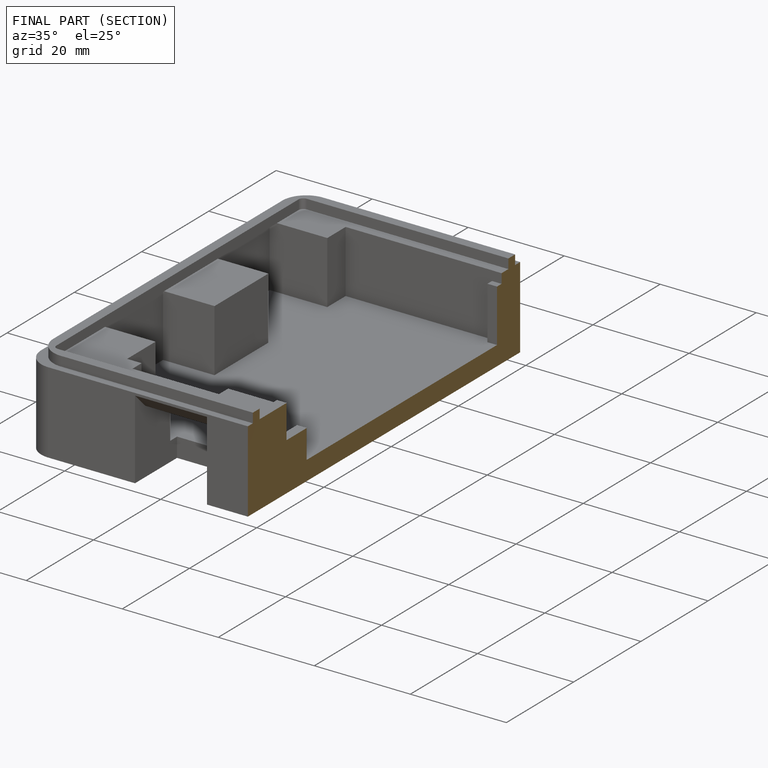
[diagram: finished part — half-section view (interior)]
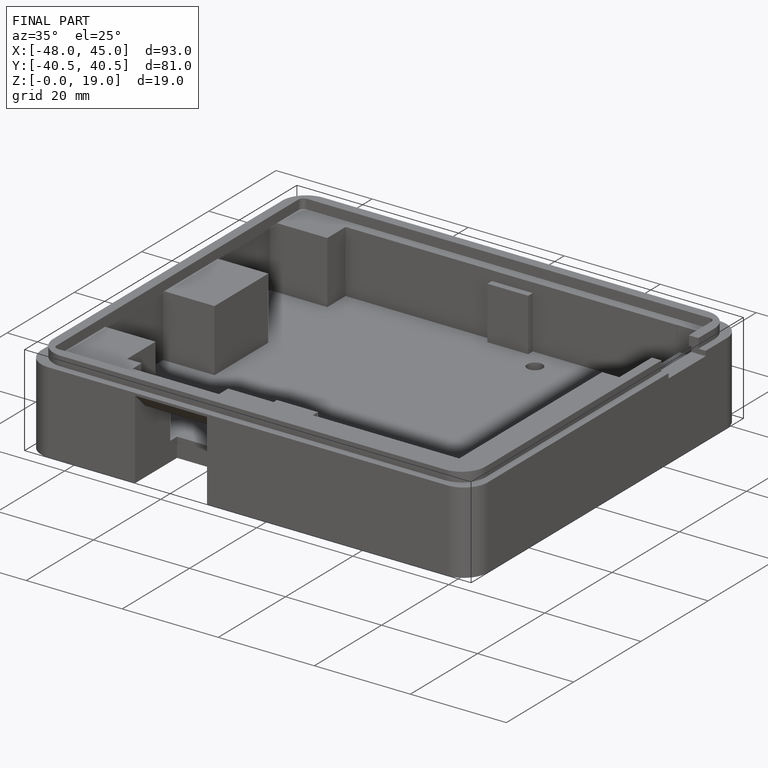
[diagram: finished part — iso view with bounding-box wireframe]
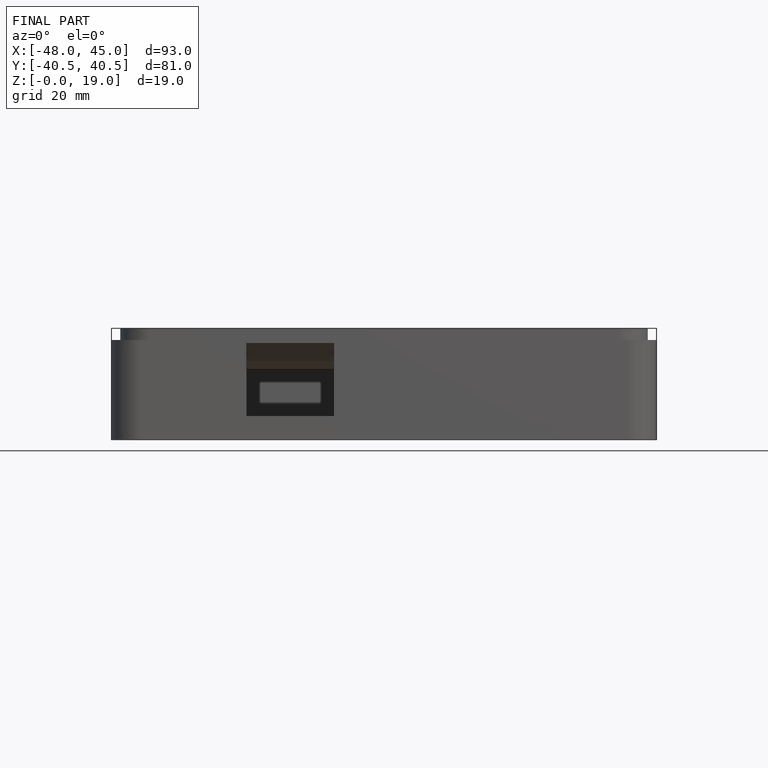
[diagram: finished part — front view with bounding-box wireframe]
